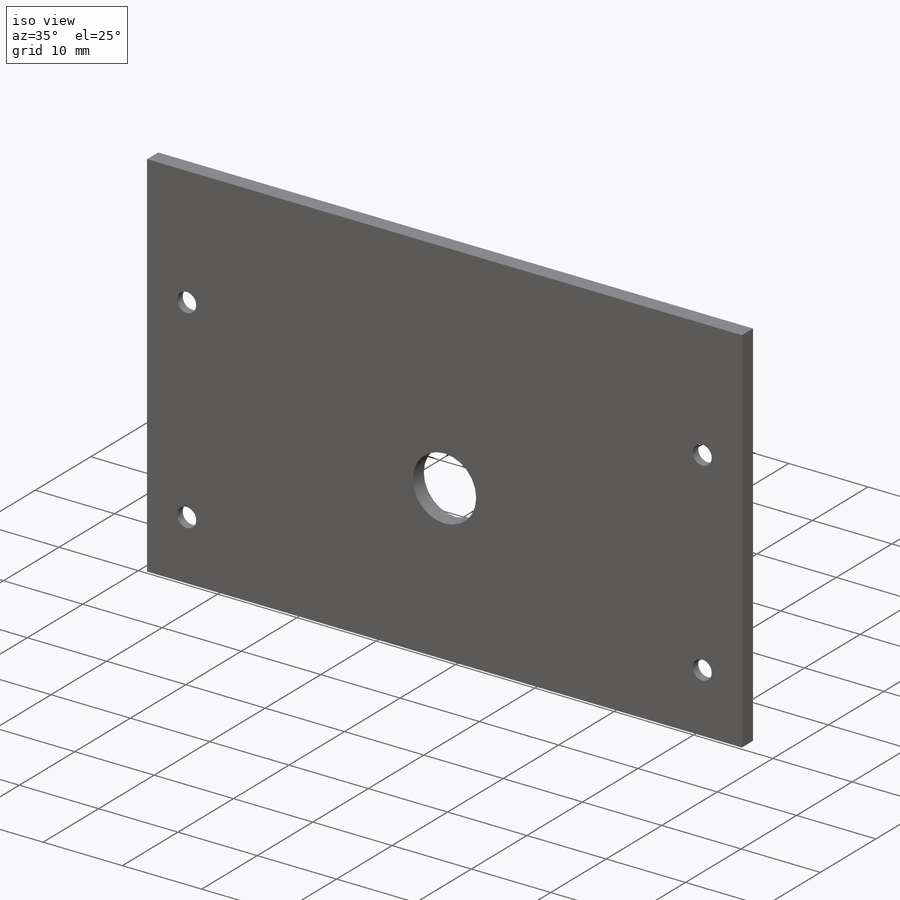
[diagram: iso view]
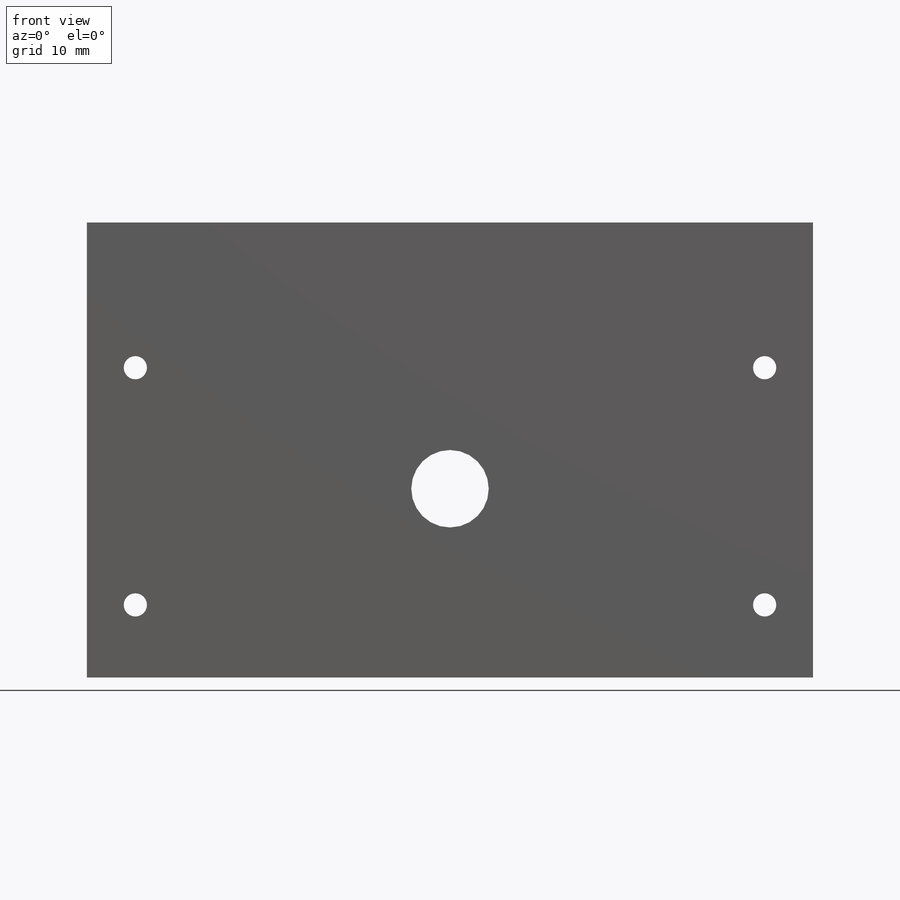
[diagram: front view]
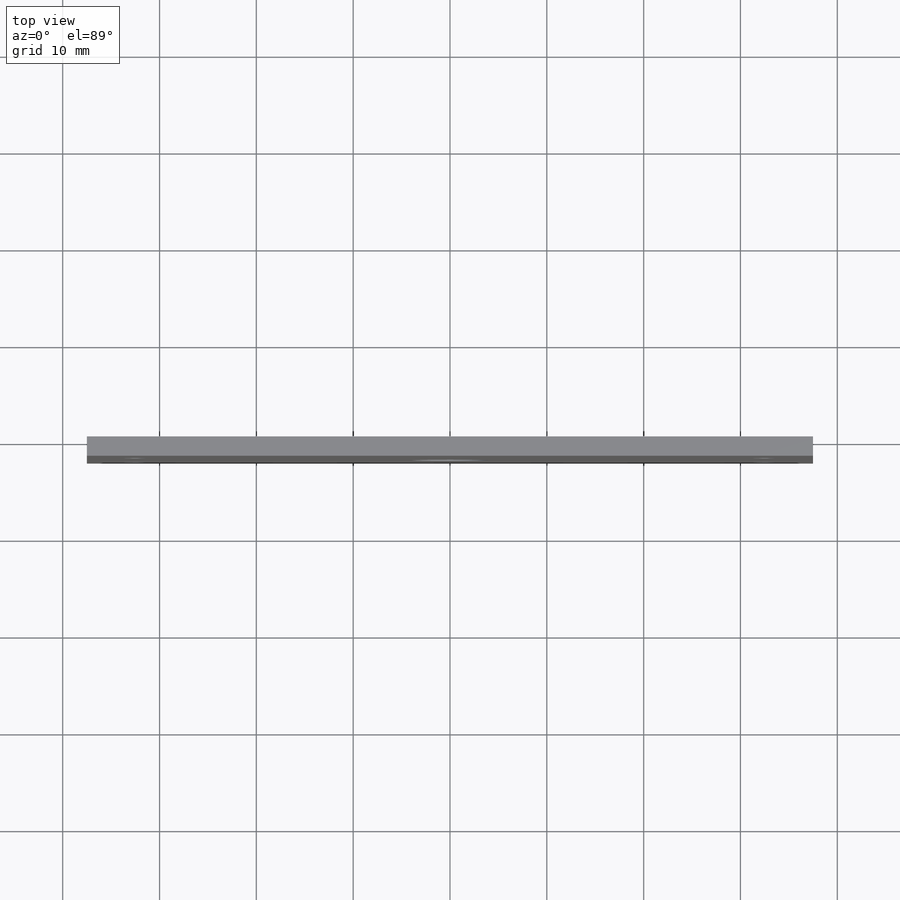
[diagram: top view]
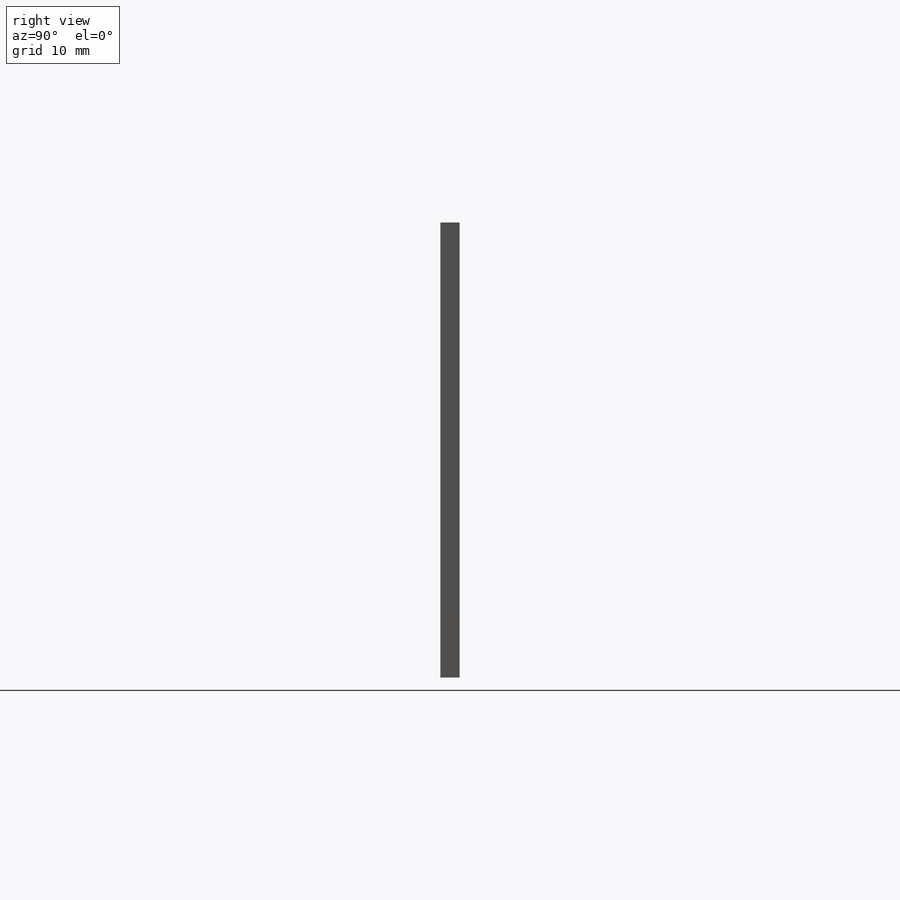
[diagram: right view]
SOLIDWORKS PART (.sldprt)
format: sldprt  version: not decoded by parser v0  size: 181,760 bytes
history: native  units: mm
features: sketch x4, material x1, extrude x1, cut_extrude x1, hole x1 (+16 scaffold rows collapsed)
feature tree (24):
  scaffold x16  (default folders/planes/origin — collapsed)
  material  "Material <not specified>"
  sketch  "Sketch1"  dims[D1=75.0mm D2=47.0mm]
  extrude  "Boss-Extrude1"  Depth=2mm
  sketch  "Sketch3"  dims[c1.D1=8.0mm c1.D2=8.0mm c1.D3=8.0mm c2.D2=19.5mm c2.D3=37.5mm]
  cut_extrude  "Cut-Extrude1"  Depth=5mm
  hole  "CSK for M2 Countersunk Flat Head Screw1"  Diameter=2.4mm Depth=2mm
  sketch  "3DSketch1"  dims[D1=15.0mm D2=7.5mm D3=5.0mm D4=5.0mm D5=15.0mm D6=5.0mm D7=5.0mm D8=7.5mm]
  sketch  "Sketch5"  dims[hole-wizard template sketch: 55 standard entries collapsed; hole parameters kept: c17.Thru Hole Depth=2.0mm c17.Near C'Sink Dia.=4.4mm c17.D4=~3.666174mm c17.Near C'Sink Angle=90.0deg]
decode coverage: 7 of 7 modeling features carry decoded parameters
note: ~ marks probable driven/reference dimensions
note: suppression state not decoded; provenance and decode notes live in map.json
